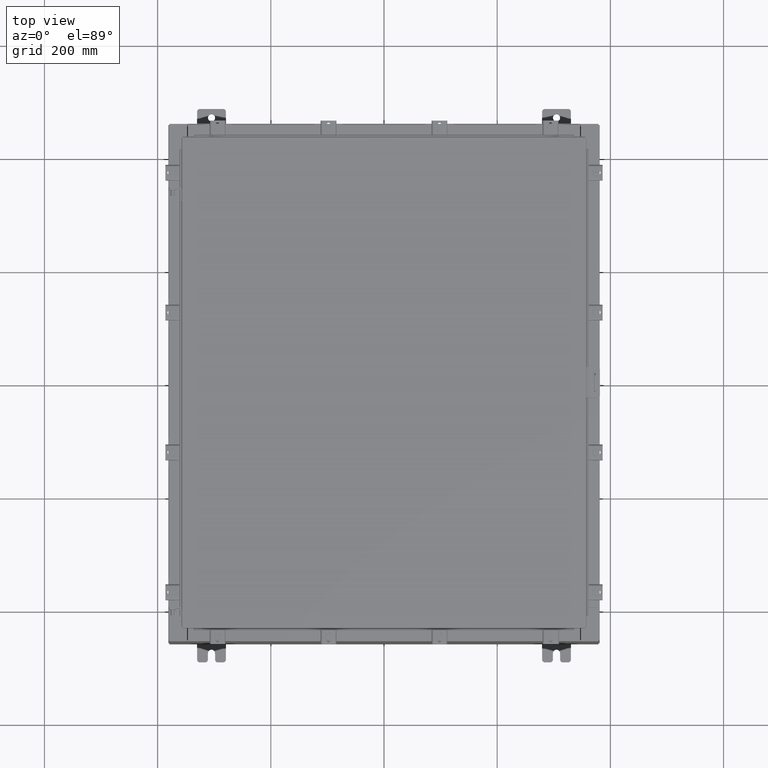
[diagram: clean part render]
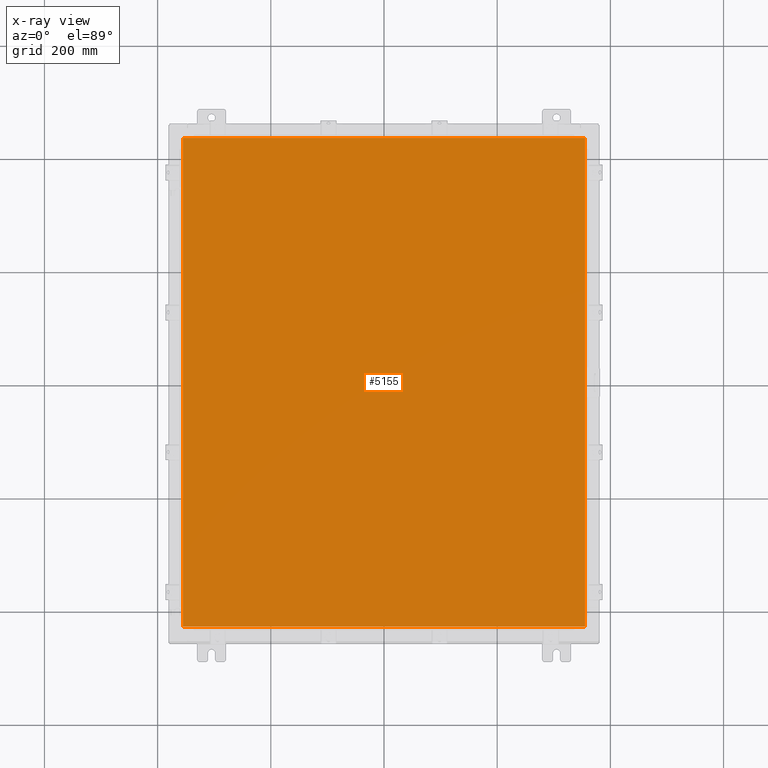
[diagram: x-ray — body ghosted, one internal face saturated and labeled with its STEP entity id]
A machine part, top view, then the same camera in x-ray: the body is ghosted and one INTERNAL B-rep face — a face not visible from any outside direction — is saturated and labeled: STEP entity #5155.
In plain terms, the highlighted planar face has unit normal (0, 0, -1).
Its self-contained STEP definition (entity closure, byte-faithful):
#183 = VERTEX_POINT ( 'NONE', #24438 ) ;
#673 = VERTEX_POINT ( 'NONE', #13489 ) ;
#855 = VECTOR ( 'NONE', #17361, 39.37007874015748100 ) ;
#944 = DIRECTION ( 'NONE',  ( -1.000000000000000000, 0.0000000000000000000, -0.0000000000000000000 ) ) ;
#1195 = ORIENTED_EDGE ( 'NONE', *, *, #16527, .F. ) ;
#2290 = VECTOR ( 'NONE', #9505, 39.37007874015748100 ) ;
#2780 = VERTEX_POINT ( 'NONE', #23739 ) ;
#4102 = CARTESIAN_POINT ( 'NONE',  ( -13.99029999999999800, -17.00630000000000300, -0.07470000000000019700 ) ) ;
#4430 = VECTOR ( 'NONE', #6767, 39.37007874015748100 ) ;
#5152 = DIRECTION ( 'NONE',  ( 0.0000000000000000000, -1.000000000000000000, 0.0000000000000000000 ) ) ;
#5155 = ADVANCED_FACE ( 'NONE', ( #10159 ), #23630, .T. ) ;
#6265 = ORIENTED_EDGE ( 'NONE', *, *, #21063, .F. ) ;
#6767 = DIRECTION ( 'NONE',  ( 0.0000000000000000000, 1.000000000000000000, 0.0000000000000000000 ) ) ;
#7171 = LINE ( 'NONE', #12717, #20506 ) ;
#7286 = EDGE_CURVE ( 'NONE', #2780, #183, #7171, .T. ) ;
#7340 = LINE ( 'NONE', #20878, #2290 ) ;
#9453 = LINE ( 'NONE', #14279, #4430 ) ;
#9505 = DIRECTION ( 'NONE',  ( -1.000000000000000000, -0.0000000000000000000, -0.0000000000000000000 ) ) ;
#10159 = FACE_OUTER_BOUND ( 'NONE', #12643, .T. ) ;
#11200 = ORIENTED_EDGE ( 'NONE', *, *, #7286, .F. ) ;
#12259 = DIRECTION ( 'NONE',  ( 0.0000000000000000000, 0.0000000000000000000, -1.000000000000000000 ) ) ;
#12507 = VERTEX_POINT ( 'NONE', #18830 ) ;
#12643 = EDGE_LOOP ( 'NONE', ( #1195, #6265, #11200, #17329 ) ) ;
#12717 = CARTESIAN_POINT ( 'NONE',  ( -13.99030000000000000, 17.00630000000000000, -0.07470000000000019700 ) ) ;
#13489 = CARTESIAN_POINT ( 'NONE',  ( 13.99029999999999800, -17.00630000000000300, -0.07470000000000000300 ) ) ;
#14279 = CARTESIAN_POINT ( 'NONE',  ( 13.99029999999999800, -17.00630000000000700, -0.07470000000000019700 ) ) ;
#15373 = LINE ( 'NONE', #4102, #855 ) ;
#16527 = EDGE_CURVE ( 'NONE', #673, #12507, #9453, .T. ) ;
#17329 = ORIENTED_EDGE ( 'NONE', *, *, #18091, .F. ) ;
#17361 = DIRECTION ( 'NONE',  ( 1.000000000000000000, -0.0000000000000000000, -0.0000000000000000000 ) ) ;
#18091 = EDGE_CURVE ( 'NONE', #12507, #2780, #7340, .T. ) ;
#18830 = CARTESIAN_POINT ( 'NONE',  ( 13.99029999999999800, 17.00629999999999600, -0.07470000000000000300 ) ) ;
#19834 = CARTESIAN_POINT ( 'NONE',  ( 0.0000000000000000000, 0.0000000000000000000, -0.07470000000000000300 ) ) ;
#20506 = VECTOR ( 'NONE', #5152, 39.37007874015748100 ) ;
#20878 = CARTESIAN_POINT ( 'NONE',  ( 13.99029999999999600, 17.00629999999999600, -0.07469999999999910000 ) ) ;
#21063 = EDGE_CURVE ( 'NONE', #183, #673, #15373, .T. ) ;
#23089 = AXIS2_PLACEMENT_3D ( 'NONE', #19834, #12259, #944 ) ;
#23630 = PLANE ( 'NONE',  #23089 ) ;
#23739 = CARTESIAN_POINT ( 'NONE',  ( -13.99030000000000000, 17.00629999999999600, -0.07470000000000000300 ) ) ;
#24438 = CARTESIAN_POINT ( 'NONE',  ( -13.99030000000000000, -17.00630000000000300, -0.07470000000000000300 ) ) ;